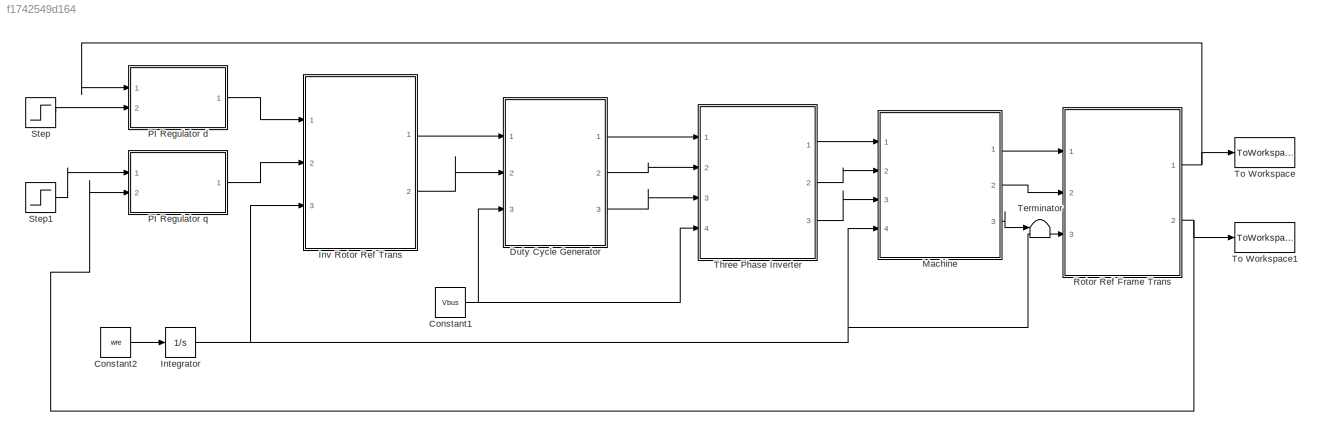
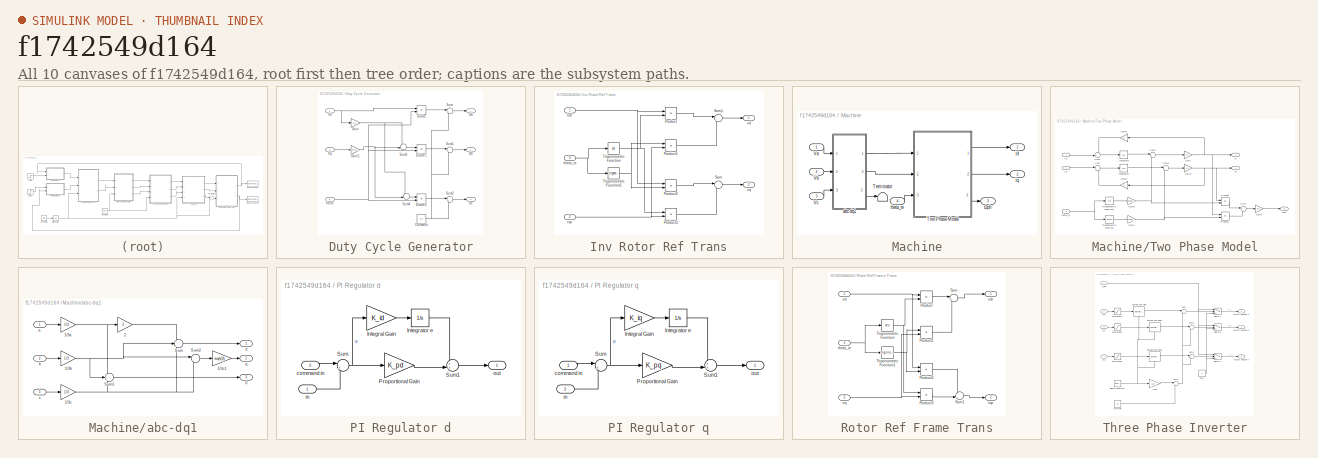
[diagram: thumbnail index - all 10 canvases of the model, root first then tree order]
MODEL slx_f1742549d164
KIND model
CONFIG AbsTol = auto
CONFIG FixedStep = auto
CONFIG MaxStep = auto
CONFIG MinStep = auto
CONFIG RelTol = 1e-3
CONFIG SampleTimeConstraint = Unconstrained
CONFIG Solver = VariableStepAuto
CONFIG SolverMode = Auto
CONFIG SolverName = VariableStepAuto
CONFIG StartTime = -.01
CONFIG StopTime = .2
BLOCK [Constant] Constant1
  Value = Vbus
BLOCK [Constant] Constant2
  Value = wre
BLOCK [SubSystem] Duty Cycle Generator
  Ports = [3, 3]
  RequestExecContextInheritance = off
  Variant = off
BLOCK [Constant] Duty Cycle Generator/Constant
  Value = 1/2
BLOCK [Outport] Duty Cycle Generator/Da
  IconDisplay = Port number
BLOCK [Outport] Duty Cycle Generator/Db
  IconDisplay = Port number
  Port = 2
BLOCK [Outport] Duty Cycle Generator/Dc
  IconDisplay = Port number
  Port = 3
BLOCK [Product] Duty Cycle Generator/Divide
  InputSameDT = off
  Inputs = */
  OutDataTypeStr = Inherit: Inherit via internal rule
  Ports = [2, 1]
  RndMeth = Floor
  SaturateOnIntegerOverflow = off
BLOCK [Product] Duty Cycle Generator/Divide1
  InputSameDT = off
  Inputs = */
  OutDataTypeStr = Inherit: Inherit via internal rule
  Ports = [2, 1]
  RndMeth = Floor
  SaturateOnIntegerOverflow = off
BLOCK [Product] Duty Cycle Generator/Divide2
  InputSameDT = off
  Inputs = */
  OutDataTypeStr = Inherit: Inherit via internal rule
  Ports = [2, 1]
  RndMeth = Floor
  SaturateOnIntegerOverflow = off
BLOCK [Gain] Duty Cycle Generator/Gain
  Gain = 1/2
  OutDataTypeStr = Inherit: Inherit via internal rule
  ParamDataTypeStr = Inherit: Inherit via internal rule
  SaturateOnIntegerOverflow = off
BLOCK [Gain] Duty Cycle Generator/Gain1
  Gain = sqrt(3)/2
  OutDataTypeStr = Inherit: Inherit via internal rule
  ParamDataTypeStr = Inherit: Inherit via internal rule
  SaturateOnIntegerOverflow = off
BLOCK [Sum] Duty Cycle Generator/Sum
  IconShape = round
  InputSameDT = off
  Inputs = |++
  OutDataTypeStr = Inherit: Inherit via internal rule
  Ports = [2, 1]
  SaturateOnIntegerOverflow = off
BLOCK [Sum] Duty Cycle Generator/Sum1
  IconShape = round
  InputSameDT = off
  Inputs = |++
  OutDataTypeStr = Inherit: Inherit via internal rule
  Ports = [2, 1]
  SaturateOnIntegerOverflow = off
BLOCK [Sum] Duty Cycle Generator/Sum2
  IconShape = round
  InputSameDT = off
  Inputs = |++
  OutDataTypeStr = Inherit: Inherit via internal rule
  Ports = [2, 1]
  SaturateOnIntegerOverflow = off
BLOCK [Sum] Duty Cycle Generator/Sum3
  IconShape = round
  InputSameDT = off
  Inputs = -+|
  OutDataTypeStr = Inherit: Inherit via internal rule
  Ports = [2, 1]
  SaturateOnIntegerOverflow = off
BLOCK [Sum] Duty Cycle Generator/Sum4
  IconShape = round
  InputSameDT = off
  Inputs = --|
  OutDataTypeStr = Inherit: Inherit via internal rule
  Ports = [2, 1]
  SaturateOnIntegerOverflow = off
BLOCK [Inport] Duty Cycle Generator/Vbus
  IconDisplay = Port number
  Port = 3
BLOCK [Inport] Duty Cycle Generator/Vd
  IconDisplay = Port number
BLOCK [Inport] Duty Cycle Generator/Vq
  IconDisplay = Port number
  Port = 2
BLOCK [Integrator] Integrator
  Ports = [1, 1]
BLOCK [SubSystem] Inv Rotor Ref Trans
  Ports = [3, 2]
  RequestExecContextInheritance = off
  Variant = off
BLOCK [Product] Inv Rotor Ref Trans/Product
  InputSameDT = off
  OutDataTypeStr = Inherit: Inherit via internal rule
  Ports = [2, 1]
  RndMeth = Floor
  SaturateOnIntegerOverflow = off
BLOCK [Product] Inv Rotor Ref Trans/Product1
  InputSameDT = off
  OutDataTypeStr = Inherit: Inherit via internal rule
  Ports = [2, 1]
  RndMeth = Floor
  SaturateOnIntegerOverflow = off
BLOCK [Product] Inv Rotor Ref Trans/Product2
  InputSameDT = off
  OutDataTypeStr = Inherit: Inherit via internal rule
  Ports = [2, 1]
  RndMeth = Floor
  SaturateOnIntegerOverflow = off
BLOCK [Product] Inv Rotor Ref Trans/Product3
  InputSameDT = off
  OutDataTypeStr = Inherit: Inherit via internal rule
  Ports = [2, 1]
  RndMeth = Floor
  SaturateOnIntegerOverflow = off
BLOCK [Sum] Inv Rotor Ref Trans/Sum
  IconShape = round
  InputSameDT = off
  Inputs = |++
  OutDataTypeStr = Inherit: Inherit via internal rule
  Ports = [2, 1]
  SaturateOnIntegerOverflow = off
BLOCK [Sum] Inv Rotor Ref Trans/Sum1
  IconShape = round
  InputSameDT = off
  Inputs = |+-
  OutDataTypeStr = Inherit: Inherit via internal rule
  Ports = [2, 1]
  SaturateOnIntegerOverflow = off
BLOCK [Trigonometry] Inv Rotor Ref Trans/Trigonometric Function
  Operator = cos
  Ports = [1, 1]
BLOCK [Trigonometry] Inv Rotor Ref Trans/Trigonometric Function1
  Ports = [1, 1]
BLOCK [Inport] Inv Rotor Ref Trans/theta_re
  IconDisplay = Port number
  Port = 3
BLOCK [Outport] Inv Rotor Ref Trans/xd
  IconDisplay = Port number
BLOCK [Inport] Inv Rotor Ref Trans/xdr
  IconDisplay = Port number
BLOCK [Outport] Inv Rotor Ref Trans/xq
  IconDisplay = Port number
  Port = 2
BLOCK [Inport] Inv Rotor Ref Trans/xqr
  IconDisplay = Port number
  Port = 2
BLOCK [SubSystem] Machine
  Ports = [4, 3]
  RequestExecContextInheritance = off
  Variant = off
BLOCK [Terminator] Machine/Terminator
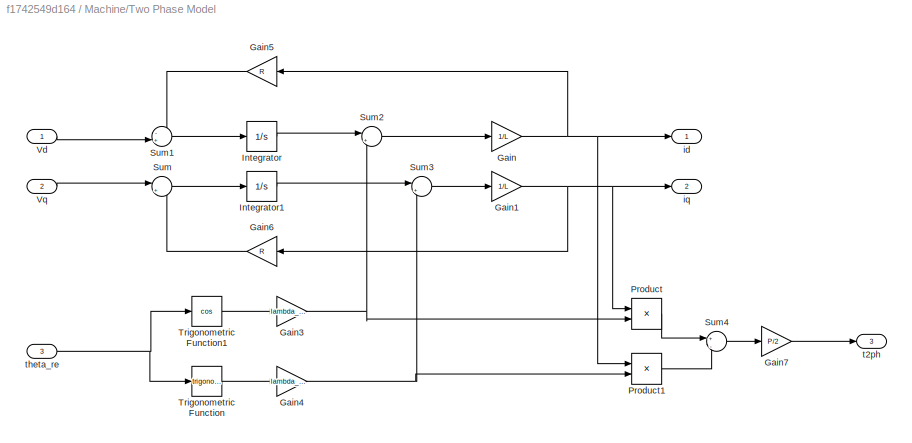
BLOCK [SubSystem] Machine/Two Phase Model
  Ports = [3, 3]
  RequestExecContextInheritance = off
  Variant = off
BLOCK [Gain] Machine/Two Phase Model/Gain
  Gain = 1/L
  OutDataTypeStr = Inherit: Inherit via internal rule
  ParamDataTypeStr = Inherit: Inherit via internal rule
  SaturateOnIntegerOverflow = off
BLOCK [Gain] Machine/Two Phase Model/Gain1
  Gain = 1/L
  OutDataTypeStr = Inherit: Inherit via internal rule
  ParamDataTypeStr = Inherit: Inherit via internal rule
  SaturateOnIntegerOverflow = off
BLOCK [Gain] Machine/Two Phase Model/Gain3
  Gain = lambda_pm
  OutDataTypeStr = Inherit: Inherit via internal rule
  ParamDataTypeStr = Inherit: Inherit via internal rule
  SaturateOnIntegerOverflow = off
BLOCK [Gain] Machine/Two Phase Model/Gain4
  Gain = lambda_pm
  OutDataTypeStr = Inherit: Inherit via internal rule
  ParamDataTypeStr = Inherit: Inherit via internal rule
  SaturateOnIntegerOverflow = off
BLOCK [Gain] Machine/Two Phase Model/Gain5
  Gain = R
  OutDataTypeStr = Inherit: Inherit via internal rule
  ParamDataTypeStr = Inherit: Inherit via internal rule
  SaturateOnIntegerOverflow = off
BLOCK [Gain] Machine/Two Phase Model/Gain6
  Gain = R
  OutDataTypeStr = Inherit: Inherit via internal rule
  ParamDataTypeStr = Inherit: Inherit via internal rule
  SaturateOnIntegerOverflow = off
BLOCK [Gain] Machine/Two Phase Model/Gain7
  Gain = P/2
  OutDataTypeStr = Inherit: Inherit via internal rule
  ParamDataTypeStr = Inherit: Inherit via internal rule
  SaturateOnIntegerOverflow = off
BLOCK [Integrator] Machine/Two Phase Model/Integrator
  Ports = [1, 1]
BLOCK [Integrator] Machine/Two Phase Model/Integrator1
  Ports = [1, 1]
BLOCK [Product] Machine/Two Phase Model/Product
  InputSameDT = off
  OutDataTypeStr = Inherit: Inherit via internal rule
  Ports = [2, 1]
  RndMeth = Floor
  SaturateOnIntegerOverflow = off
BLOCK [Product] Machine/Two Phase Model/Product1
  InputSameDT = off
  OutDataTypeStr = Inherit: Inherit via internal rule
  Ports = [2, 1]
  RndMeth = Floor
  SaturateOnIntegerOverflow = off
BLOCK [Sum] Machine/Two Phase Model/Sum
  IconShape = round
  InputSameDT = off
  Inputs = |+-
  OutDataTypeStr = Inherit: Inherit via internal rule
  Ports = [2, 1]
  SaturateOnIntegerOverflow = off
BLOCK [Sum] Machine/Two Phase Model/Sum1
  IconShape = round
  InputSameDT = off
  Inputs = -+|
  OutDataTypeStr = Inherit: Inherit via internal rule
  Ports = [2, 1]
  SaturateOnIntegerOverflow = off
BLOCK [Sum] Machine/Two Phase Model/Sum2
  IconShape = round
  InputSameDT = off
  Inputs = |+-
  OutDataTypeStr = Inherit: Inherit via internal rule
  Ports = [2, 1]
  SaturateOnIntegerOverflow = off
BLOCK [Sum] Machine/Two Phase Model/Sum3
  IconShape = round
  InputSameDT = off
  Inputs = |+-
  OutDataTypeStr = Inherit: Inherit via internal rule
  Ports = [2, 1]
  SaturateOnIntegerOverflow = off
BLOCK [Sum] Machine/Two Phase Model/Sum4
  IconShape = round
  InputSameDT = off
  Inputs = +|-
  OutDataTypeStr = Inherit: Inherit via internal rule
  Ports = [2, 1]
  SaturateOnIntegerOverflow = off
BLOCK [Trigonometry] Machine/Two Phase Model/Trigonometric Function
  Ports = [1, 1]
BLOCK [Trigonometry] Machine/Two Phase Model/Trigonometric Function1
  Operator = cos
  Ports = [1, 1]
BLOCK [Inport] Machine/Two Phase Model/Vd
  IconDisplay = Port number
BLOCK [Inport] Machine/Two Phase Model/Vq
  IconDisplay = Port number
  Port = 2
BLOCK [Outport] Machine/Two Phase Model/id
  IconDisplay = Port number
BLOCK [Outport] Machine/Two Phase Model/iq
  IconDisplay = Port number
  Port = 2
BLOCK [Outport] Machine/Two Phase Model/t2ph
  IconDisplay = Port number
  Port = 3
BLOCK [Inport] Machine/Two Phase Model/theta_re
  IconDisplay = Port number
  Port = 3
BLOCK [Inport] Machine/Va
  IconDisplay = Port number
BLOCK [Inport] Machine/Vb
  IconDisplay = Port number
  Port = 2
BLOCK [Inport] Machine/Vc 
  IconDisplay = Port number
  Port = 3
BLOCK [SubSystem] Machine/abc-dq1
  Ports = [3, 3]
  RequestExecContextInheritance = off
  Variant = off
BLOCK [Outport] Machine/abc-dq1/0
  IconDisplay = Port number
  Port = 3
BLOCK [Gain] Machine/abc-dq1/1//3a
  Gain = 1/3
  OutDataTypeStr = Inherit: Inherit via internal rule
  ParamDataTypeStr = Inherit: Inherit via internal rule
  SaturateOnIntegerOverflow = off
BLOCK [Gain] Machine/abc-dq1/1//3b
  Gain = 1/3
  OutDataTypeStr = Inherit: Inherit via internal rule
  ParamDataTypeStr = Inherit: Inherit via internal rule
  SaturateOnIntegerOverflow = off
BLOCK [Gain] Machine/abc-dq1/1//3c
  Gain = 1/3
  OutDataTypeStr = Inherit: Inherit via internal rule
  ParamDataTypeStr = Inherit: Inherit via internal rule
  SaturateOnIntegerOverflow = off
BLOCK [Gain] Machine/abc-dq1/1//3c1
  Gain = sqrt(3)
  OutDataTypeStr = Inherit: Inherit via internal rule
  ParamDataTypeStr = Inherit: Inherit via internal rule
  SaturateOnIntegerOverflow = off
BLOCK [Gain] Machine/abc-dq1/2
  Gain = 2
  OutDataTypeStr = Inherit: Inherit via internal rule
  ParamDataTypeStr = Inherit: Inherit via internal rule
  SaturateOnIntegerOverflow = off
BLOCK [Sum] Machine/abc-dq1/Sum
  IconShape = round
  InputSameDT = off
  Inputs = +--
  OutDataTypeStr = Inherit: Inherit via internal rule
  Ports = [3, 1]
  SaturateOnIntegerOverflow = off
BLOCK [Sum] Machine/abc-dq1/Sum1
  IconShape = round
  InputSameDT = off
  Inputs = +++
  OutDataTypeStr = Inherit: Inherit via internal rule
  Ports = [3, 1]
  SaturateOnIntegerOverflow = off
BLOCK [Sum] Machine/abc-dq1/Sum2
  IconShape = round
  InputSameDT = off
  Inputs = |+-
  OutDataTypeStr = Inherit: Inherit via internal rule
  Ports = [2, 1]
  SaturateOnIntegerOverflow = off
BLOCK [Inport] Machine/abc-dq1/a
  IconDisplay = Port number
BLOCK [Inport] Machine/abc-dq1/b
  IconDisplay = Port number
  Port = 2
BLOCK [Inport] Machine/abc-dq1/c
  IconDisplay = Port number
  Port = 3
BLOCK [Outport] Machine/abc-dq1/d
  IconDisplay = Port number
BLOCK [Outport] Machine/abc-dq1/q
  IconDisplay = Port number
  Port = 2
BLOCK [Outport] Machine/id
  IconDisplay = Port number
BLOCK [Outport] Machine/iq
  IconDisplay = Port number
  Port = 2
BLOCK [Outport] Machine/t2ph
  IconDisplay = Port number
  Port = 3
BLOCK [Inport] Machine/theta_re
  IconDisplay = Port number
  Port = 4
BLOCK [SubSystem] PI Regulator d
  Ports = [2, 1]
  RequestExecContextInheritance = off
  Variant = off
BLOCK [Gain] PI Regulator d/Integral Gain
  Gain = K_id
BLOCK [Integrator] PI Regulator d/Integrator e
  Ports = [1, 1]
BLOCK [Gain] PI Regulator d/Proportional Gain
  Gain = K_pd
BLOCK [Sum] PI Regulator d/Sum
  IconShape = round
  InputSameDT = off
  Inputs = |+-
  OutDataTypeStr = Inherit: Inherit via internal rule
  Ports = [2, 1]
BLOCK [Sum] PI Regulator d/Sum1
  IconShape = round
  InputSameDT = off
  Inputs = ++|
  OutDataTypeStr = Inherit: Inherit via internal rule
  Ports = [2, 1]
BLOCK [Inport] PI Regulator d/command in
  IconDisplay = Port number
  Port = 2
BLOCK [Inport] PI Regulator d/in
  IconDisplay = Port number
BLOCK [Outport] PI Regulator d/out
  IconDisplay = Port number
BLOCK [SubSystem] PI Regulator q
  Ports = [2, 1]
  RequestExecContextInheritance = off
  Variant = off
BLOCK [Gain] PI Regulator q/Integral Gain
  Gain = K_iq
BLOCK [Integrator] PI Regulator q/Integrator e
  Ports = [1, 1]
BLOCK [Gain] PI Regulator q/Proportional Gain
  Gain = K_pq
BLOCK [Sum] PI Regulator q/Sum
  IconShape = round
  InputSameDT = off
  Inputs = |+-
  OutDataTypeStr = Inherit: Inherit via internal rule
  Ports = [2, 1]
BLOCK [Sum] PI Regulator q/Sum1
  IconShape = round
  InputSameDT = off
  Inputs = ++|
  OutDataTypeStr = Inherit: Inherit via internal rule
  Ports = [2, 1]
BLOCK [Inport] PI Regulator q/command in
  IconDisplay = Port number
BLOCK [Inport] PI Regulator q/in
  IconDisplay = Port number
  Port = 2
BLOCK [Outport] PI Regulator q/out
  IconDisplay = Port number
BLOCK [SubSystem] Rotor Ref Frame Trans
  Ports = [3, 2]
  RequestExecContextInheritance = off
  Variant = off
BLOCK [Product] Rotor Ref Frame Trans/Product
  InputSameDT = off
  OutDataTypeStr = Inherit: Inherit via internal rule
  Ports = [2, 1]
  RndMeth = Floor
  SaturateOnIntegerOverflow = off
BLOCK [Product] Rotor Ref Frame Trans/Product1
  InputSameDT = off
  OutDataTypeStr = Inherit: Inherit via internal rule
  Ports = [2, 1]
  RndMeth = Floor
  SaturateOnIntegerOverflow = off
BLOCK [Product] Rotor Ref Frame Trans/Product2
  InputSameDT = off
  OutDataTypeStr = Inherit: Inherit via internal rule
  Ports = [2, 1]
  RndMeth = Floor
  SaturateOnIntegerOverflow = off
BLOCK [Product] Rotor Ref Frame Trans/Product3
  InputSameDT = off
  OutDataTypeStr = Inherit: Inherit via internal rule
  Ports = [2, 1]
  RndMeth = Floor
  SaturateOnIntegerOverflow = off
BLOCK [Sum] Rotor Ref Frame Trans/Sum
  IconShape = round
  InputSameDT = off
  Inputs = |++
  OutDataTypeStr = Inherit: Inherit via internal rule
  Ports = [2, 1]
  SaturateOnIntegerOverflow = off
BLOCK [Sum] Rotor Ref Frame Trans/Sum1
  IconShape = round
  InputSameDT = off
  Inputs = -+|
  OutDataTypeStr = Inherit: Inherit via internal rule
  Ports = [2, 1]
  SaturateOnIntegerOverflow = off
BLOCK [Trigonometry] Rotor Ref Frame Trans/Trigonometric Function
  Operator = cos
  Ports = [1, 1]
BLOCK [Trigonometry] Rotor Ref Frame Trans/Trigonometric Function1
  Ports = [1, 1]
BLOCK [Inport] Rotor Ref Frame Trans/theta_re
  IconDisplay = Port number
  Port = 3
BLOCK [Inport] Rotor Ref Frame Trans/xd
  IconDisplay = Port number
BLOCK [Outport] Rotor Ref Frame Trans/xdr
  IconDisplay = Port number
BLOCK [Inport] Rotor Ref Frame Trans/xq
  IconDisplay = Port number
  Port = 2
BLOCK [Outport] Rotor Ref Frame Trans/xqr
  IconDisplay = Port number
  Port = 2
BLOCK [Step] Step
  After = idr
  SampleTime = 0
  Time = 0
BLOCK [Step] Step1
  After = iqr
  SampleTime = 0
  Time = 0
BLOCK [Terminator] Terminator
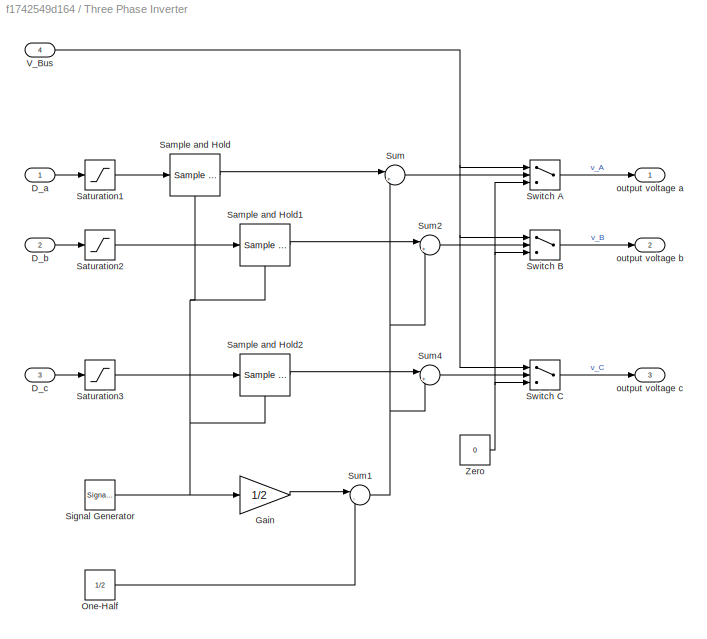
BLOCK [SubSystem] Three Phase Inverter
  Ports = [4, 3]
  RequestExecContextInheritance = off
  Variant = off
BLOCK [Inport] Three Phase Inverter/D_a
  IconDisplay = Port number
BLOCK [Inport] Three Phase Inverter/D_b
  IconDisplay = Port number
  Port = 2
BLOCK [Inport] Three Phase Inverter/D_c
  IconDisplay = Port number
  Port = 3
BLOCK [Gain] Three Phase Inverter/Gain
  Gain = 1/2
BLOCK [Constant] Three Phase Inverter/One-Half
  Value = 1/2
BLOCK [Reference] Three Phase Inverter/Sample and Hold  REF=dspsigops/Sample
and Hold
  Ports = [1, 1, 0, 1]
  SourceBlock = dspsigops/Sample\nand Hold
  SourceType = Sample and Hold
BLOCK [Reference] Three Phase Inverter/Sample and Hold1  REF=dspsigops/Sample
and Hold
  Ports = [1, 1, 0, 1]
  SourceBlock = dspsigops/Sample\nand Hold
  SourceType = Sample and Hold
BLOCK [Reference] Three Phase Inverter/Sample and Hold2  REF=dspsigops/Sample
and Hold
  Ports = [1, 1, 0, 1]
  SourceBlock = dspsigops/Sample\nand Hold
  SourceType = Sample and Hold
BLOCK [Saturate] Three Phase Inverter/Saturation1
  InputPortMap = u0
  LowerLimit = 0
  Ports = [1, 1]
  UpperLimit = 1
BLOCK [Saturate] Three Phase Inverter/Saturation2
  InputPortMap = u0
  LowerLimit = 0
  Ports = [1, 1]
  UpperLimit = 1
BLOCK [Saturate] Three Phase Inverter/Saturation3
  InputPortMap = u0
  LowerLimit = 0
  Ports = [1, 1]
  UpperLimit = 1
BLOCK [SignalGenerator] Three Phase Inverter/Signal Generator
  Frequency = f_sw
  Ports = [0, 1]
  WaveForm = sawtooth
BLOCK [Sum] Three Phase Inverter/Sum
  IconShape = round
  InputSameDT = off
  Inputs = |+-
  OutDataTypeStr = Inherit: Inherit via internal rule
  Ports = [2, 1]
BLOCK [Sum] Three Phase Inverter/Sum1
  IconShape = round
  InputSameDT = off
  Inputs = |-+
  OutDataTypeStr = Inherit: Inherit via internal rule
  Ports = [2, 1]
BLOCK [Sum] Three Phase Inverter/Sum2
  IconShape = round
  InputSameDT = off
  Inputs = |+-
  OutDataTypeStr = Inherit: Inherit via internal rule
  Ports = [2, 1]
BLOCK [Sum] Three Phase Inverter/Sum4
  IconShape = round
  InputSameDT = off
  Inputs = |+-
  OutDataTypeStr = Inherit: Inherit via internal rule
  Ports = [2, 1]
BLOCK [Switch] Three Phase Inverter/Switch A
  InputSameDT = off
BLOCK [Switch] Three Phase Inverter/Switch B
  InputSameDT = off
BLOCK [Switch] Three Phase Inverter/Switch C
  InputSameDT = off
BLOCK [Inport] Three Phase Inverter/V_Bus
  IconDisplay = Port number
  Port = 4
BLOCK [Constant] Three Phase Inverter/Zero
  Value = 0
BLOCK [Outport] Three Phase Inverter/output voltage a
  IconDisplay = Port number
BLOCK [Outport] Three Phase Inverter/output voltage b
  IconDisplay = Port number
  Port = 2
BLOCK [Outport] Three Phase Inverter/output voltage c
  IconDisplay = Port number
  Port = 3
BLOCK [ToWorkspace] To Workspace
  FixptAsFi = on
  MaxDataPoints = inf
  Ports = [1]
  SampleTime = -1
  Save2DSignal = 3-D array (concatenate along third dimension)
  VariableName = idr_sim
BLOCK [ToWorkspace] To Workspace1
  FixptAsFi = on
  MaxDataPoints = inf
  Ports = [1]
  SampleTime = -1
  Save2DSignal = 3-D array (concatenate along third dimension)
  VariableName = iqr_sim
NET Constant1:1 -> Duty Cycle Generator:3, Three Phase Inverter:4
LINE Constant2:1 -> Integrator:1
NET Duty Cycle Generator/Constant:1 -> Duty Cycle Generator/Sum1:2, Duty Cycle Generator/Sum2:2, Duty Cycle Generator/Sum:2
LINE Duty Cycle Generator/Divide1:1 -> Duty Cycle Generator/Sum1:1
LINE Duty Cycle Generator/Divide2:1 -> Duty Cycle Generator/Sum2:1
LINE Duty Cycle Generator/Divide:1 -> Duty Cycle Generator/Sum:1
NET Duty Cycle Generator/Gain1:1 -> Duty Cycle Generator/Sum3:2, Duty Cycle Generator/Sum4:2
NET Duty Cycle Generator/Gain:1 -> Duty Cycle Generator/Sum3:1, Duty Cycle Generator/Sum4:1
LINE Duty Cycle Generator/Sum1:1 -> Duty Cycle Generator/Db:1
LINE Duty Cycle Generator/Sum2:1 -> Duty Cycle Generator/Dc:1
LINE Duty Cycle Generator/Sum3:1 -> Duty Cycle Generator/Divide1:1
LINE Duty Cycle Generator/Sum4:1 -> Duty Cycle Generator/Divide2:1
LINE Duty Cycle Generator/Sum:1 -> Duty Cycle Generator/Da:1
NET Duty Cycle Generator/Vbus:1 -> Duty Cycle Generator/Divide1:2, Duty Cycle Generator/Divide2:2, Duty Cycle Generator/Divide:2
NET Duty Cycle Generator/Vd:1 -> Duty Cycle Generator/Divide:1, Duty Cycle Generator/Gain:1
LINE Duty Cycle Generator/Vq:1 -> Duty Cycle Generator/Gain1:1
LINE Duty Cycle Generator:1 -> Three Phase Inverter:1
LINE Duty Cycle Generator:2 -> Three Phase Inverter:2
LINE Duty Cycle Generator:3 -> Three Phase Inverter:3
NET Integrator:1 -> Inv Rotor Ref Trans:3, Machine:4, Rotor Ref Frame Trans:3
LINE Inv Rotor Ref Trans/Product1:1 -> Inv Rotor Ref Trans/Sum1:2
LINE Inv Rotor Ref Trans/Product2:1 -> Inv Rotor Ref Trans/Sum:1
LINE Inv Rotor Ref Trans/Product3:1 -> Inv Rotor Ref Trans/Sum:2
LINE Inv Rotor Ref Trans/Product:1 -> Inv Rotor Ref Trans/Sum1:1
LINE Inv Rotor Ref Trans/Sum1:1 -> Inv Rotor Ref Trans/xd:1
LINE Inv Rotor Ref Trans/Sum:1 -> Inv Rotor Ref Trans/xq:1
NET Inv Rotor Ref Trans/Trigonometric Function1:1 -> Inv Rotor Ref Trans/Product1:1, Inv Rotor Ref Trans/Product2:2
NET Inv Rotor Ref Trans/Trigonometric Function:1 -> Inv Rotor Ref Trans/Product3:1, Inv Rotor Ref Trans/Product:2
NET Inv Rotor Ref Trans/theta_re:1 -> Inv Rotor Ref Trans/Trigonometric Function1:1, Inv Rotor Ref Trans/Trigonometric Function:1
NET Inv Rotor Ref Trans/xdr:1 -> Inv Rotor Ref Trans/Product2:1, Inv Rotor Ref Trans/Product:1
NET Inv Rotor Ref Trans/xqr:1 -> Inv Rotor Ref Trans/Product1:2, Inv Rotor Ref Trans/Product3:2
LINE Inv Rotor Ref Trans:1 -> Duty Cycle Generator:1
LINE Inv Rotor Ref Trans:2 -> Duty Cycle Generator:2
NET Machine/Two Phase Model/Gain1:1 -> Machine/Two Phase Model/Gain6:1, Machine/Two Phase Model/Product:1, Machine/Two Phase Model/iq:1
NET Machine/Two Phase Model/Gain3:1 -> Machine/Two Phase Model/Product:2, Machine/Two Phase Model/Sum2:2
NET Machine/Two Phase Model/Gain4:1 -> Machine/Two Phase Model/Product1:2, Machine/Two Phase Model/Sum3:2
LINE Machine/Two Phase Model/Gain5:1 -> Machine/Two Phase Model/Sum1:1
LINE Machine/Two Phase Model/Gain6:1 -> Machine/Two Phase Model/Sum:2
LINE Machine/Two Phase Model/Gain7:1 -> Machine/Two Phase Model/t2ph:1
NET Machine/Two Phase Model/Gain:1 -> Machine/Two Phase Model/Gain5:1, Machine/Two Phase Model/Product1:1, Machine/Two Phase Model/id:1
LINE Machine/Two Phase Model/Integrator1:1 -> Machine/Two Phase Model/Sum3:1
LINE Machine/Two Phase Model/Integrator:1 -> Machine/Two Phase Model/Sum2:1
LINE Machine/Two Phase Model/Product1:1 -> Machine/Two Phase Model/Sum4:2
LINE Machine/Two Phase Model/Product:1 -> Machine/Two Phase Model/Sum4:1
LINE Machine/Two Phase Model/Sum1:1 -> Machine/Two Phase Model/Integrator:1
LINE Machine/Two Phase Model/Sum2:1 -> Machine/Two Phase Model/Gain:1
LINE Machine/Two Phase Model/Sum3:1 -> Machine/Two Phase Model/Gain1:1
LINE Machine/Two Phase Model/Sum4:1 -> Machine/Two Phase Model/Gain7:1
LINE Machine/Two Phase Model/Sum:1 -> Machine/Two Phase Model/Integrator1:1
LINE Machine/Two Phase Model/Trigonometric Function1:1 -> Machine/Two Phase Model/Gain3:1
LINE Machine/Two Phase Model/Trigonometric Function:1 -> Machine/Two Phase Model/Gain4:1
LINE Machine/Two Phase Model/Vd:1 -> Machine/Two Phase Model/Sum1:2
LINE Machine/Two Phase Model/Vq:1 -> Machine/Two Phase Model/Sum:1
NET Machine/Two Phase Model/theta_re:1 -> Machine/Two Phase Model/Trigonometric Function1:1, Machine/Two Phase Model/Trigonometric Function:1
LINE Machine/Two Phase Model:1 -> Machine/id:1
LINE Machine/Two Phase Model:2 -> Machine/iq:1
LINE Machine/Two Phase Model:3 -> Machine/t2ph:1
LINE Machine/Va:1 -> Machine/abc-dq1:1
LINE Machine/Vb:1 -> Machine/abc-dq1:2
LINE Machine/Vc :1 -> Machine/abc-dq1:3
NET Machine/abc-dq1/1//3a:1 -> Machine/abc-dq1/2:1, Machine/abc-dq1/Sum1:1
NET Machine/abc-dq1/1//3b:1 -> Machine/abc-dq1/Sum1:2, Machine/abc-dq1/Sum2:1, Machine/abc-dq1/Sum:2
LINE Machine/abc-dq1/1//3c1:1 -> Machine/abc-dq1/q:1
NET Machine/abc-dq1/1//3c:1 -> Machine/abc-dq1/Sum1:3, Machine/abc-dq1/Sum2:2, Machine/abc-dq1/Sum:3
LINE Machine/abc-dq1/2:1 -> Machine/abc-dq1/Sum:1
LINE Machine/abc-dq1/Sum1:1 -> Machine/abc-dq1/0:1
LINE Machine/abc-dq1/Sum2:1 -> Machine/abc-dq1/1//3c1:1
LINE Machine/abc-dq1/Sum:1 -> Machine/abc-dq1/d:1
LINE Machine/abc-dq1/a:1 -> Machine/abc-dq1/1//3a:1
LINE Machine/abc-dq1/b:1 -> Machine/abc-dq1/1//3b:1
LINE Machine/abc-dq1/c:1 -> Machine/abc-dq1/1//3c:1
LINE Machine/abc-dq1:1 -> Machine/Two Phase Model:1
LINE Machine/abc-dq1:2 -> Machine/Two Phase Model:2
LINE Machine/abc-dq1:3 -> Machine/Terminator:1
LINE Machine/theta_re:1 -> Machine/Two Phase Model:3
LINE Machine:1 -> Rotor Ref Frame Trans:1
LINE Machine:2 -> Rotor Ref Frame Trans:2
LINE Machine:3 -> Terminator:1
LINE PI Regulator d/Integral Gain:1 -> PI Regulator d/Integrator e:1
LINE PI Regulator d/Integrator e:1 -> PI Regulator d/Sum1:1
LINE PI Regulator d/Proportional Gain:1 -> PI Regulator d/Sum1:2
LINE PI Regulator d/Sum1:1 -> PI Regulator d/out:1
NET PI Regulator d/Sum:1 -> PI Regulator d/Integral Gain:1, PI Regulator d/Proportional Gain:1
LINE PI Regulator d/command in:1 -> PI Regulator d/Sum:1
LINE PI Regulator d/in:1 -> PI Regulator d/Sum:2
LINE PI Regulator d:1 -> Inv Rotor Ref Trans:1
LINE PI Regulator q/Integral Gain:1 -> PI Regulator q/Integrator e:1
LINE PI Regulator q/Integrator e:1 -> PI Regulator q/Sum1:1
LINE PI Regulator q/Proportional Gain:1 -> PI Regulator q/Sum1:2
LINE PI Regulator q/Sum1:1 -> PI Regulator q/out:1
NET PI Regulator q/Sum:1 -> PI Regulator q/Integral Gain:1, PI Regulator q/Proportional Gain:1
LINE PI Regulator q/command in:1 -> PI Regulator q/Sum:1
LINE PI Regulator q/in:1 -> PI Regulator q/Sum:2
LINE PI Regulator q:1 -> Inv Rotor Ref Trans:2
LINE Rotor Ref Frame Trans/Product1:1 -> Rotor Ref Frame Trans/Sum:2
LINE Rotor Ref Frame Trans/Product2:1 -> Rotor Ref Frame Trans/Sum1:1
LINE Rotor Ref Frame Trans/Product3:1 -> Rotor Ref Frame Trans/Sum1:2
LINE Rotor Ref Frame Trans/Product:1 -> Rotor Ref Frame Trans/Sum:1
LINE Rotor Ref Frame Trans/Sum1:1 -> Rotor Ref Frame Trans/xqr:1
LINE Rotor Ref Frame Trans/Sum:1 -> Rotor Ref Frame Trans/xdr:1
NET Rotor Ref Frame Trans/Trigonometric Function1:1 -> Rotor Ref Frame Trans/Product1:1, Rotor Ref Frame Trans/Product2:2
NET Rotor Ref Frame Trans/Trigonometric Function:1 -> Rotor Ref Frame Trans/Product3:1, Rotor Ref Frame Trans/Product:2
NET Rotor Ref Frame Trans/theta_re:1 -> Rotor Ref Frame Trans/Trigonometric Function1:1, Rotor Ref Frame Trans/Trigonometric Function:1
NET Rotor Ref Frame Trans/xd:1 -> Rotor Ref Frame Trans/Product2:1, Rotor Ref Frame Trans/Product:1
NET Rotor Ref Frame Trans/xq:1 -> Rotor Ref Frame Trans/Product1:2, Rotor Ref Frame Trans/Product3:2
NET Rotor Ref Frame Trans:1 -> PI Regulator d:1, To Workspace:1
NET Rotor Ref Frame Trans:2 -> PI Regulator q:2, To Workspace1:1
LINE Step1:1 -> PI Regulator q:1
LINE Step:1 -> PI Regulator d:2
LINE Three Phase Inverter/D_a:1 -> Three Phase Inverter/Saturation1:1
LINE Three Phase Inverter/D_b:1 -> Three Phase Inverter/Saturation2:1
LINE Three Phase Inverter/D_c:1 -> Three Phase Inverter/Saturation3:1
LINE Three Phase Inverter/Gain:1 -> Three Phase Inverter/Sum1:1
LINE Three Phase Inverter/One-Half:1 -> Three Phase Inverter/Sum1:2
LINE Three Phase Inverter/Sample and Hold1:1 -> Three Phase Inverter/Sum2:1
LINE Three Phase Inverter/Sample and Hold2:1 -> Three Phase Inverter/Sum4:1
LINE Three Phase Inverter/Sample and Hold:1 -> Three Phase Inverter/Sum:1
LINE Three Phase Inverter/Saturation1:1 -> Three Phase Inverter/Sample and Hold:1
LINE Three Phase Inverter/Saturation2:1 -> Three Phase Inverter/Sample and Hold1:1
LINE Three Phase Inverter/Saturation3:1 -> Three Phase Inverter/Sample and Hold2:1
NET Three Phase Inverter/Signal Generator:1 -> Three Phase Inverter/Gain:1, Three Phase Inverter/Sample and Hold1:trigger, Three Phase Inverter/Sample and Hold2:trigger, Three Phase Inverter/Sample and Hold:trigger
NET Three Phase Inverter/Sum1:1 -> Three Phase Inverter/Sum2:2, Three Phase Inverter/Sum4:2, Three Phase Inverter/Sum:2
LINE Three Phase Inverter/Sum2:1 -> Three Phase Inverter/Switch B:2
LINE Three Phase Inverter/Sum4:1 -> Three Phase Inverter/Switch C:2
LINE Three Phase Inverter/Sum:1 -> Three Phase Inverter/Switch A:2
LINE Three Phase Inverter/Switch A:1 -> Three Phase Inverter/output voltage a:1
LINE Three Phase Inverter/Switch B:1 -> Three Phase Inverter/output voltage b:1
LINE Three Phase Inverter/Switch C:1 -> Three Phase Inverter/output voltage c:1
NET Three Phase Inverter/V_Bus:1 -> Three Phase Inverter/Switch A:1, Three Phase Inverter/Switch B:1, Three Phase Inverter/Switch C:1
NET Three Phase Inverter/Zero:1 -> Three Phase Inverter/Switch A:3, Three Phase Inverter/Switch B:3, Three Phase Inverter/Switch C:3
LINE Three Phase Inverter:1 -> Machine:1
LINE Three Phase Inverter:2 -> Machine:2
LINE Three Phase Inverter:3 -> Machine:3
note: NET lines group one-source signal fan-out (src -> all destinations, sorted); 1:1 wires keep LINE
